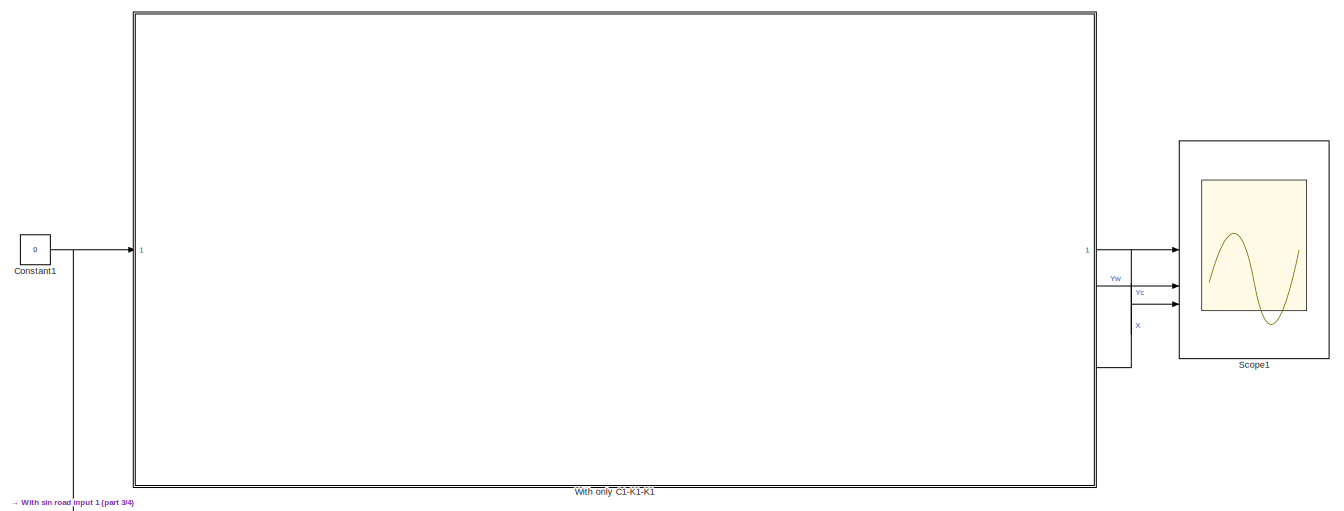
[diagram: root canvas - part 1/4, top left region]
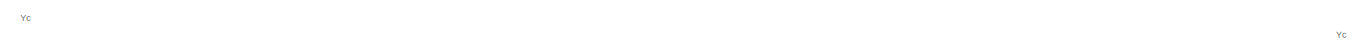
[diagram: root canvas - part 2/4, top right region]
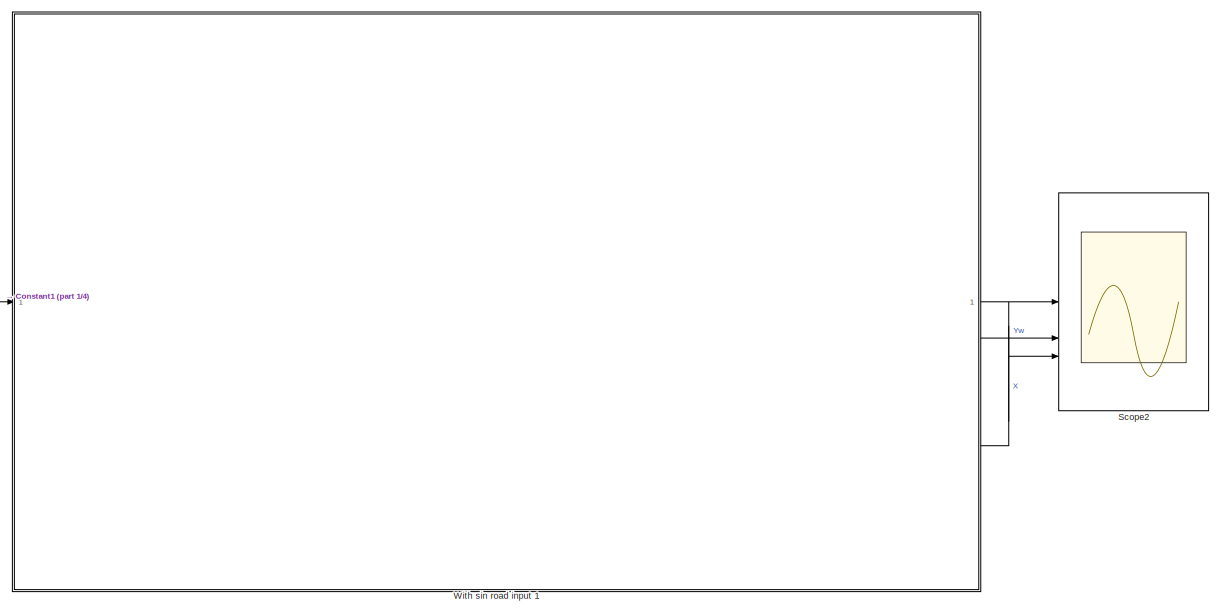
[diagram: root canvas - part 3/4, bottom left region]
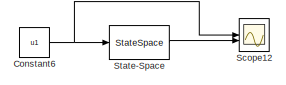
[diagram: root canvas - part 4/4, central region]
MODEL slx_862b7bc6cebf
KIND model
CONFIG AbsTol = auto
CONFIG EnableMultiTasking = off
CONFIG FixedStep = auto
CONFIG MaxStep = 1e-4
CONFIG MinStep = auto
CONFIG RelTol = 1e-3
CONFIG SampleTimeConstraint = Unconstrained
CONFIG SolverName = VariableStepAuto
CONFIG StartTime = 0.0
CONFIG StopTime = 40.0
BLOCK [Constant] Constant1
  Value = 0
BLOCK [Constant] Constant6
  Commented = on
  Value = u1
BLOCK [Scope] Scope1
  Floating = off
  NumInputPorts = 3
  ScopeSpecificationString = Simulink.scopes.TimeScopeBlockCfg('CurrentConfiguration', extmgr.ConfigurationSet(extmgr.Configuration('Core','General UI',true),extmgr.Configuration('Core','Source UI',true),extmgr.Configuration('Sources','WiredSimulink',true,'DataLoggingVariableName','ScopeData9'),extmgr.Configuration('Visuals','Time Domain',true,'SerializedDisplays',{struct('MinYLimReal','-5.92859','MaxYLimReal','53.35733','YLa...<+1399ch>
BLOCK [Scope] Scope12
  Commented = on
  Floating = off
  NumInputPorts = 2
  ScopeSpecificationString = Simulink.scopes.TimeScopeBlockCfg('CurrentConfiguration', extmgr.ConfigurationSet(extmgr.Configuration('Core','General UI',true),extmgr.Configuration('Core','Source UI',true),extmgr.Configuration('Sources','WiredSimulink',true,'DataLoggingVariableName','ScopeData4'),extmgr.Configuration('Visuals','Time Domain',true,'SerializedDisplays',{struct('MinYLimReal','-0.00112','MaxYLimReal','0.0345','YLabe...<+1537ch>
BLOCK [Scope] Scope2
  Floating = off
  NumInputPorts = 3
  ScopeSpecificationString = Simulink.scopes.TimeScopeBlockCfg('CurrentConfiguration', extmgr.ConfigurationSet(extmgr.Configuration('Core','General UI',true),extmgr.Configuration('Core','Source UI',true),extmgr.Configuration('Sources','WiredSimulink',true,'DataLoggingVariableName','ScopeData1'),extmgr.Configuration('Visuals','Time Domain',true,'SerializedDisplays',{struct('MinYLimReal','-5.20901','MaxYLimReal','46.88105','YLa...<+1420ch>
BLOCK [StateSpace] State-Space
  A = A
  B = B
  C = C
  Commented = on
  D = D
  InitialCondition = 0
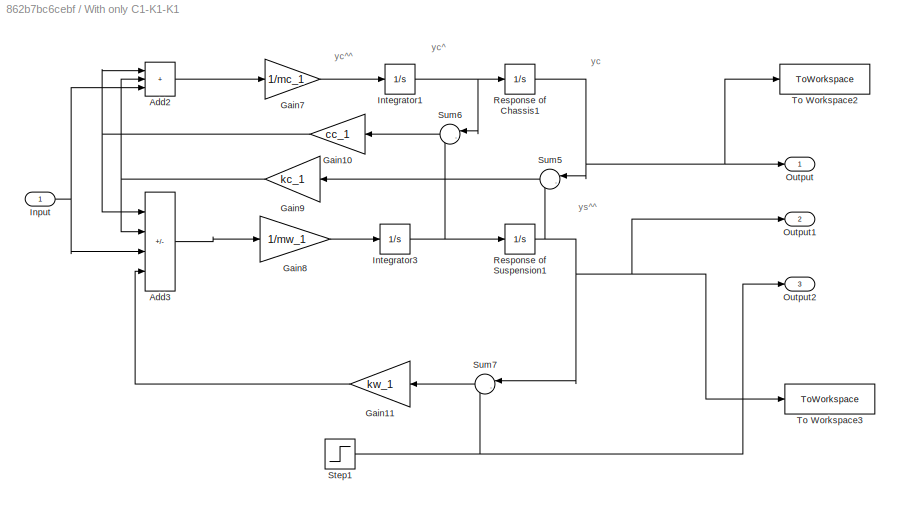
BLOCK [SubSystem] With only C1-K1-K1
BLOCK [Sum] With only C1-K1-K1/Add2
  IconShape = rectangular
  Inputs = +++
BLOCK [Sum] With only C1-K1-K1/Add3
  IconShape = rectangular
  Inputs = ---+
BLOCK [Gain] With only C1-K1-K1/Gain10
  Gain = cc_1
  NameLocation = top
BLOCK [Gain] With only C1-K1-K1/Gain11
  Gain = kw_1
  NameLocation = top
BLOCK [Gain] With only C1-K1-K1/Gain7
  Gain = 1/mc_1
BLOCK [Gain] With only C1-K1-K1/Gain8
  Gain = 1/mw_1
BLOCK [Gain] With only C1-K1-K1/Gain9
  Gain = kc_1
  NameLocation = top
BLOCK [Inport] With only C1-K1-K1/Input
BLOCK [Integrator] With only C1-K1-K1/Integrator1
BLOCK [Integrator] With only C1-K1-K1/Integrator3
BLOCK [Outport] With only C1-K1-K1/Output
BLOCK [Outport] With only C1-K1-K1/Output1
  Port = 2
BLOCK [Outport] With only C1-K1-K1/Output2
  Port = 3
BLOCK [Integrator] With only C1-K1-K1/Response of Chassis1
BLOCK [Integrator] With only C1-K1-K1/Response of Suspension1
BLOCK [Step] With only C1-K1-K1/Step1
  After = 30
  SampleTime = 0
BLOCK [Sum] With only C1-K1-K1/Sum5
  Inputs = |-+
  NameLocation = top
BLOCK [Sum] With only C1-K1-K1/Sum6
  Inputs = |-+
  NameLocation = top
BLOCK [Sum] With only C1-K1-K1/Sum7
  Inputs = |-+
  NameLocation = top
BLOCK [ToWorkspace] With only C1-K1-K1/To Workspace2
  FixptAsFi = on
  MaxDataPoints = inf
  SampleTime = -1
  SaveFormat = Timeseries
  VariableName = Yc_1
BLOCK [ToWorkspace] With only C1-K1-K1/To Workspace3
  FixptAsFi = on
  MaxDataPoints = inf
  SampleTime = -1
  SaveFormat = Timeseries
  VariableName = Yw_1
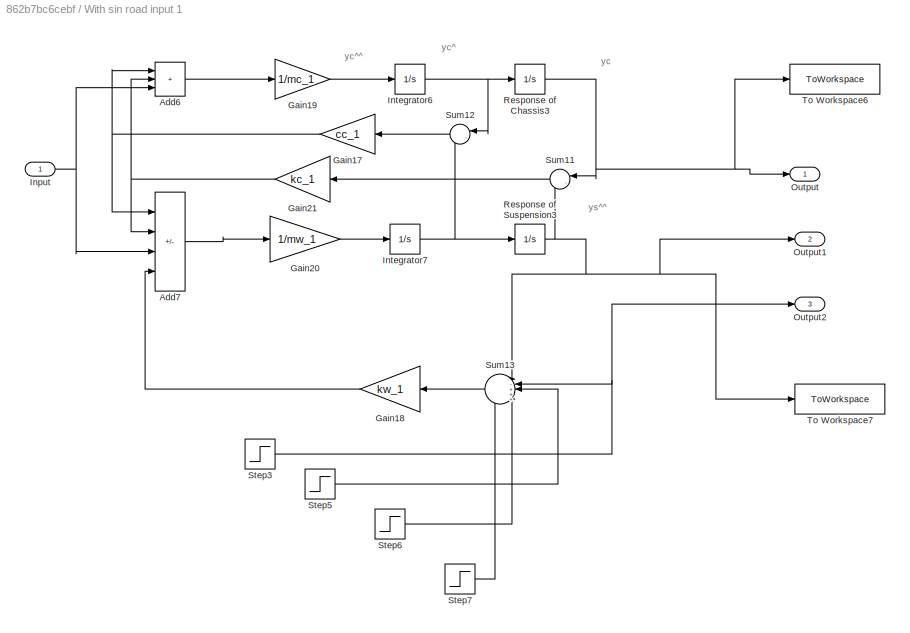
BLOCK [SubSystem] With sin road input 1
BLOCK [Sum] With sin road input 1/Add6
  IconShape = rectangular
  Inputs = +++
BLOCK [Sum] With sin road input 1/Add7
  IconShape = rectangular
  Inputs = ---+
BLOCK [Gain] With sin road input 1/Gain17
  Gain = cc_1
  NameLocation = top
BLOCK [Gain] With sin road input 1/Gain18
  Gain = kw_1
  NameLocation = top
BLOCK [Gain] With sin road input 1/Gain19
  Gain = 1/mc_1
BLOCK [Gain] With sin road input 1/Gain20
  Gain = 1/mw_1
BLOCK [Gain] With sin road input 1/Gain21
  Gain = kc_1
  NameLocation = top
BLOCK [Inport] With sin road input 1/Input
BLOCK [Integrator] With sin road input 1/Integrator6
BLOCK [Integrator] With sin road input 1/Integrator7
BLOCK [Outport] With sin road input 1/Output
BLOCK [Outport] With sin road input 1/Output1
  Port = 2
BLOCK [Outport] With sin road input 1/Output2
  Port = 3
BLOCK [Integrator] With sin road input 1/Response of Chassis3
BLOCK [Integrator] With sin road input 1/Response of Suspension3
BLOCK [Step] With sin road input 1/Step3
  After = 10
  SampleTime = 0
  Time = 5
BLOCK [Step] With sin road input 1/Step5
  After = 20
  SampleTime = 0
  Time = 10
BLOCK [Step] With sin road input 1/Step6
  After = -10
  SampleTime = 0
  Time = 15
BLOCK [Step] With sin road input 1/Step7
  After = 5
  SampleTime = 0
  Time = 20
BLOCK [Sum] With sin road input 1/Sum11
  Inputs = |-+
  NameLocation = top
BLOCK [Sum] With sin road input 1/Sum12
  Inputs = |-+
  NameLocation = top
BLOCK [Sum] With sin road input 1/Sum13
  Inputs = |-++++
  NameLocation = top
BLOCK [ToWorkspace] With sin road input 1/To Workspace6
  FixptAsFi = on
  MaxDataPoints = inf
  SampleTime = -1
  SaveFormat = Timeseries
  VariableName = Yc_3
BLOCK [ToWorkspace] With sin road input 1/To Workspace7
  FixptAsFi = on
  MaxDataPoints = inf
  SampleTime = -1
  SaveFormat = Timeseries
  VariableName = Yw_3
ANNOTATION (root): Yc
ANNOTATION With only C1-K1-K1: yc
ANNOTATION With only C1-K1-K1: yc^
ANNOTATION With only C1-K1-K1: yc^^
ANNOTATION With only C1-K1-K1: ys^^
ANNOTATION With sin road input 1: yc
ANNOTATION With sin road input 1: yc^
ANNOTATION With sin road input 1: yc^^
ANNOTATION With sin road input 1: ys^^
NET Constant1:1 -> With only C1-K1-K1:1, With sin road input 1:1
NET Constant6:1 -> Scope12:1, State-Space:1
LINE State-Space:1 -> Scope12:2
LINE With only C1-K1-K1/Add2:1 -> With only C1-K1-K1/Gain7:1
LINE With only C1-K1-K1/Add3:1 -> With only C1-K1-K1/Gain8:1
NET With only C1-K1-K1/Gain10:1 -> With only C1-K1-K1/Add2:1, With only C1-K1-K1/Add3:1
LINE With only C1-K1-K1/Gain11:1 -> With only C1-K1-K1/Add3:4
LINE With only C1-K1-K1/Gain7:1 -> With only C1-K1-K1/Integrator1:1
LINE With only C1-K1-K1/Gain8:1 -> With only C1-K1-K1/Integrator3:1
NET With only C1-K1-K1/Gain9:1 -> With only C1-K1-K1/Add2:2, With only C1-K1-K1/Add3:2
NET With only C1-K1-K1/Input:1 -> With only C1-K1-K1/Add2:3, With only C1-K1-K1/Add3:3
NET With only C1-K1-K1/Integrator1:1 -> With only C1-K1-K1/Response of Chassis1:1, With only C1-K1-K1/Sum6:1
NET With only C1-K1-K1/Integrator3:1 -> With only C1-K1-K1/Response of Suspension1:1, With only C1-K1-K1/Sum6:2
NET With only C1-K1-K1/Response of Chassis1:1 -> With only C1-K1-K1/Output:1, With only C1-K1-K1/Sum5:1, With only C1-K1-K1/To Workspace2:1
NET With only C1-K1-K1/Response of Suspension1:1 -> With only C1-K1-K1/Output1:1, With only C1-K1-K1/Sum5:2, With only C1-K1-K1/Sum7:1, With only C1-K1-K1/To Workspace3:1
NET With only C1-K1-K1/Step1:1 -> With only C1-K1-K1/Output2:1, With only C1-K1-K1/Sum7:2
LINE With only C1-K1-K1/Sum5:1 -> With only C1-K1-K1/Gain9:1
LINE With only C1-K1-K1/Sum6:1 -> With only C1-K1-K1/Gain10:1
LINE With only C1-K1-K1/Sum7:1 -> With only C1-K1-K1/Gain11:1
LINE With only C1-K1-K1:1 -> Scope1:1
LINE With only C1-K1-K1:2 -> Scope1:2
LINE With only C1-K1-K1:3 -> Scope1:3
LINE With sin road input 1/Add6:1 -> With sin road input 1/Gain19:1
LINE With sin road input 1/Add7:1 -> With sin road input 1/Gain20:1
NET With sin road input 1/Gain17:1 -> With sin road input 1/Add6:1, With sin road input 1/Add7:1
LINE With sin road input 1/Gain18:1 -> With sin road input 1/Add7:4
LINE With sin road input 1/Gain19:1 -> With sin road input 1/Integrator6:1
LINE With sin road input 1/Gain20:1 -> With sin road input 1/Integrator7:1
NET With sin road input 1/Gain21:1 -> With sin road input 1/Add6:2, With sin road input 1/Add7:2
NET With sin road input 1/Input:1 -> With sin road input 1/Add6:3, With sin road input 1/Add7:3
NET With sin road input 1/Integrator6:1 -> With sin road input 1/Response of Chassis3:1, With sin road input 1/Sum12:1
NET With sin road input 1/Integrator7:1 -> With sin road input 1/Response of Suspension3:1, With sin road input 1/Sum12:2
NET With sin road input 1/Response of Chassis3:1 -> With sin road input 1/Output:1, With sin road input 1/Sum11:1, With sin road input 1/To Workspace6:1
NET With sin road input 1/Response of Suspension3:1 -> With sin road input 1/Output1:1, With sin road input 1/Sum11:2, With sin road input 1/Sum13:1, With sin road input 1/To Workspace7:1
NET With sin road input 1/Step3:1 -> With sin road input 1/Output2:1, With sin road input 1/Sum13:2
LINE With sin road input 1/Step5:1 -> With sin road input 1/Sum13:3
LINE With sin road input 1/Step6:1 -> With sin road input 1/Sum13:4
LINE With sin road input 1/Step7:1 -> With sin road input 1/Sum13:5
LINE With sin road input 1/Sum11:1 -> With sin road input 1/Gain21:1
LINE With sin road input 1/Sum12:1 -> With sin road input 1/Gain17:1
LINE With sin road input 1/Sum13:1 -> With sin road input 1/Gain18:1
LINE With sin road input 1:1 -> Scope2:1
LINE With sin road input 1:2 -> Scope2:2
LINE With sin road input 1:3 -> Scope2:3
note: NET lines group one-source signal fan-out (src -> all destinations, sorted); 1:1 wires keep LINE
